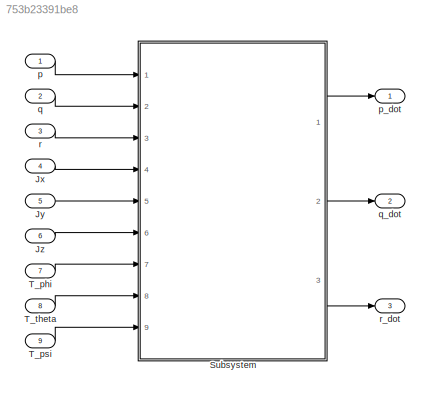
MODEL slx_753b23391be8
KIND model
CONFIG AbsTol = auto
CONFIG EnableMultiTasking = off
CONFIG FixedStep = auto
CONFIG MaxStep = auto
CONFIG MinStep = auto
CONFIG RelTol = 1e-3
CONFIG SampleTimeConstraint = Unconstrained
CONFIG Solver = VariableStepAuto
CONFIG SolverName = VariableStepAuto
CONFIG StartTime = 0.0
CONFIG StopTime = 10.0
BLOCK [Inport] Jx
  IconDisplay = Port number
  Port = 4
BLOCK [Inport] Jy
  IconDisplay = Port number
  Port = 5
BLOCK [Inport] Jz
  IconDisplay = Port number
  Port = 6
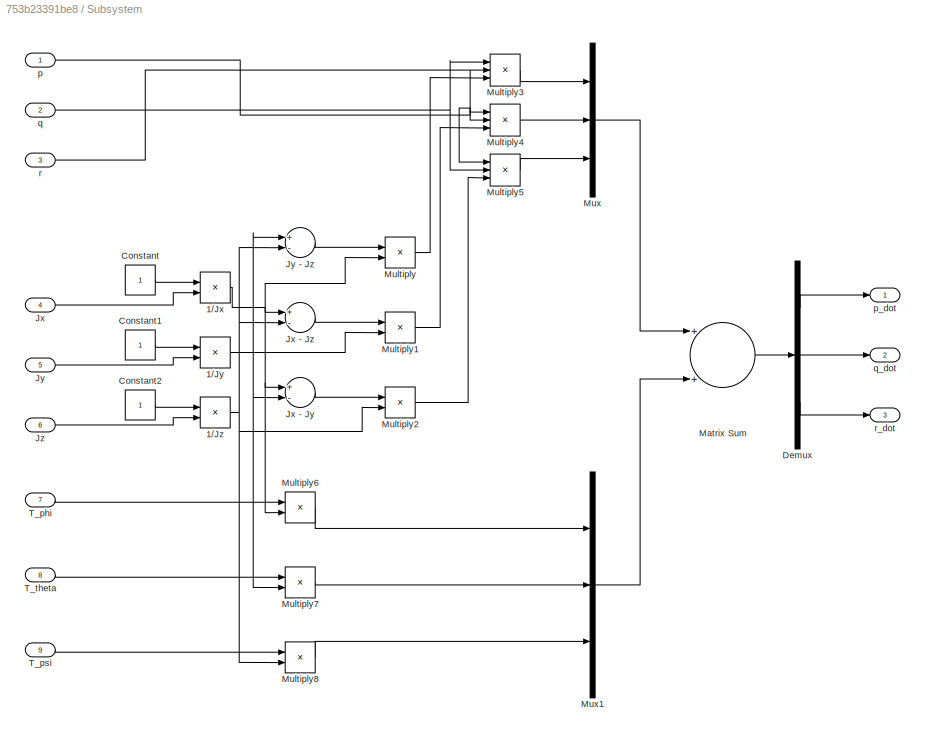
BLOCK [SubSystem] Subsystem
  Ports = [9, 3]
  RequestExecContextInheritance = off
BLOCK [Product] Subsystem/1//Jx
  InputSameDT = off
  Inputs = */
  OutDataTypeStr = Inherit: Inherit via internal rule
  Ports = [2, 1]
  RndMeth = Floor
  SaturateOnIntegerOverflow = off
BLOCK [Product] Subsystem/1//Jy
  InputSameDT = off
  Inputs = */
  OutDataTypeStr = Inherit: Inherit via internal rule
  Ports = [2, 1]
  RndMeth = Floor
  SaturateOnIntegerOverflow = off
BLOCK [Product] Subsystem/1//Jz
  InputSameDT = off
  Inputs = */
  OutDataTypeStr = Inherit: Inherit via internal rule
  Ports = [2, 1]
  RndMeth = Floor
  SaturateOnIntegerOverflow = off
BLOCK [Constant] Subsystem/Constant
BLOCK [Constant] Subsystem/Constant1
BLOCK [Constant] Subsystem/Constant2
BLOCK [Demux] Subsystem/Demux
  DisplayOption = bar
  Outputs = 3
  Ports = [1, 3]
BLOCK [Inport] Subsystem/Jx
  IconDisplay = Port number
  Port = 4
BLOCK [Sum] Subsystem/Jx - Jy
  InputSameDT = off
  Inputs = +-
  OutDataTypeStr = Inherit: Inherit via internal rule
  Ports = [2, 1]
  SaturateOnIntegerOverflow = off
BLOCK [Sum] Subsystem/Jx - Jz
  InputSameDT = off
  Inputs = +-
  OutDataTypeStr = Inherit: Inherit via internal rule
  Ports = [2, 1]
  SaturateOnIntegerOverflow = off
BLOCK [Inport] Subsystem/Jy
  IconDisplay = Port number
  Port = 5
BLOCK [Sum] Subsystem/Jy - Jz
  InputSameDT = off
  Inputs = +-
  OutDataTypeStr = Inherit: Inherit via internal rule
  Ports = [2, 1]
  SaturateOnIntegerOverflow = off
BLOCK [Inport] Subsystem/Jz
  IconDisplay = Port number
  Port = 6
BLOCK [Sum] Subsystem/Matrix Sum
  InputSameDT = off
  OutDataTypeStr = Inherit: Inherit via internal rule
  Ports = [2, 1]
  SaturateOnIntegerOverflow = off
BLOCK [Product] Subsystem/Multiply
  InputSameDT = off
  OutDataTypeStr = Inherit: Inherit via internal rule
  Ports = [2, 1]
  RndMeth = Floor
  SaturateOnIntegerOverflow = off
BLOCK [Product] Subsystem/Multiply1
  InputSameDT = off
  OutDataTypeStr = Inherit: Inherit via internal rule
  Ports = [2, 1]
  RndMeth = Floor
  SaturateOnIntegerOverflow = off
BLOCK [Product] Subsystem/Multiply2
  InputSameDT = off
  OutDataTypeStr = Inherit: Inherit via internal rule
  Ports = [2, 1]
  RndMeth = Floor
  SaturateOnIntegerOverflow = off
BLOCK [Product] Subsystem/Multiply3
  InputSameDT = off
  Inputs = 3
  OutDataTypeStr = Inherit: Inherit via internal rule
  Ports = [3, 1]
  RndMeth = Floor
  SaturateOnIntegerOverflow = off
BLOCK [Product] Subsystem/Multiply4
  InputSameDT = off
  Inputs = 3
  OutDataTypeStr = Inherit: Inherit via internal rule
  Ports = [3, 1]
  RndMeth = Floor
  SaturateOnIntegerOverflow = off
BLOCK [Product] Subsystem/Multiply5
  InputSameDT = off
  Inputs = 3
  OutDataTypeStr = Inherit: Inherit via internal rule
  Ports = [3, 1]
  RndMeth = Floor
  SaturateOnIntegerOverflow = off
BLOCK [Product] Subsystem/Multiply6
  InputSameDT = off
  OutDataTypeStr = Inherit: Inherit via internal rule
  Ports = [2, 1]
  RndMeth = Floor
  SaturateOnIntegerOverflow = off
BLOCK [Product] Subsystem/Multiply7
  InputSameDT = off
  OutDataTypeStr = Inherit: Inherit via internal rule
  Ports = [2, 1]
  RndMeth = Floor
  SaturateOnIntegerOverflow = off
BLOCK [Product] Subsystem/Multiply8
  InputSameDT = off
  OutDataTypeStr = Inherit: Inherit via internal rule
  Ports = [2, 1]
  RndMeth = Floor
  SaturateOnIntegerOverflow = off
BLOCK [Mux] Subsystem/Mux
  DisplayOption = bar
  Inputs = 3
  Ports = [3, 1]
BLOCK [Mux] Subsystem/Mux1
  DisplayOption = bar
  Inputs = 3
  Ports = [3, 1]
BLOCK [Inport] Subsystem/T_phi
  IconDisplay = Port number
  Port = 7
BLOCK [Inport] Subsystem/T_psi
  IconDisplay = Port number
  Port = 9
BLOCK [Inport] Subsystem/T_theta
  IconDisplay = Port number
  Port = 8
BLOCK [Inport] Subsystem/p
  IconDisplay = Port number
BLOCK [Outport] Subsystem/p_dot
  IconDisplay = Port number
BLOCK [Inport] Subsystem/q
  IconDisplay = Port number
  Port = 2
BLOCK [Outport] Subsystem/q_dot
  IconDisplay = Port number
  Port = 2
BLOCK [Inport] Subsystem/r
  IconDisplay = Port number
  Port = 3
BLOCK [Outport] Subsystem/r_dot
  IconDisplay = Port number
  Port = 3
BLOCK [Inport] T_phi
  IconDisplay = Port number
  Port = 7
BLOCK [Inport] T_psi
  IconDisplay = Port number
  Port = 9
BLOCK [Inport] T_theta
  IconDisplay = Port number
  Port = 8
BLOCK [Inport] p
  IconDisplay = Port number
BLOCK [Outport] p_dot
  IconDisplay = Port number
BLOCK [Inport] q
  IconDisplay = Port number
  Port = 2
BLOCK [Outport] q_dot
  IconDisplay = Port number
  Port = 2
BLOCK [Inport] r
  IconDisplay = Port number
  Port = 3
BLOCK [Outport] r_dot
  IconDisplay = Port number
  Port = 3
LINE Jx:1 -> Subsystem:4
LINE Jy:1 -> Subsystem:5
LINE Jz:1 -> Subsystem:6
NET Subsystem/1//Jx:1 -> Subsystem/Jx - Jy:1, Subsystem/Jx - Jz:1, Subsystem/Multiply6:2, Subsystem/Multiply:2
NET Subsystem/1//Jy:1 -> Subsystem/Jx - Jy:2, Subsystem/Jy - Jz:1, Subsystem/Multiply1:2, Subsystem/Multiply7:2
NET Subsystem/1//Jz:1 -> Subsystem/Jx - Jz:2, Subsystem/Jy - Jz:2, Subsystem/Multiply2:2, Subsystem/Multiply8:2
LINE Subsystem/Constant1:1 -> Subsystem/1//Jy:1
LINE Subsystem/Constant2:1 -> Subsystem/1//Jz:1
LINE Subsystem/Constant:1 -> Subsystem/1//Jx:1
LINE Subsystem/Demux:1 -> Subsystem/p_dot:1
LINE Subsystem/Demux:2 -> Subsystem/q_dot:1
LINE Subsystem/Demux:3 -> Subsystem/r_dot:1
LINE Subsystem/Jx - Jy:1 -> Subsystem/Multiply2:1
LINE Subsystem/Jx - Jz:1 -> Subsystem/Multiply1:1
LINE Subsystem/Jx:1 -> Subsystem/1//Jx:2
LINE Subsystem/Jy - Jz:1 -> Subsystem/Multiply:1
LINE Subsystem/Jy:1 -> Subsystem/1//Jy:2
LINE Subsystem/Jz:1 -> Subsystem/1//Jz:2
LINE Subsystem/Matrix Sum:1 -> Subsystem/Demux:1
LINE Subsystem/Multiply1:1 -> Subsystem/Multiply4:3
LINE Subsystem/Multiply2:1 -> Subsystem/Multiply5:3
LINE Subsystem/Multiply3:1 -> Subsystem/Mux:1
LINE Subsystem/Multiply4:1 -> Subsystem/Mux:2
LINE Subsystem/Multiply5:1 -> Subsystem/Mux:3
LINE Subsystem/Multiply6:1 -> Subsystem/Mux1:1
LINE Subsystem/Multiply7:1 -> Subsystem/Mux1:2
LINE Subsystem/Multiply8:1 -> Subsystem/Mux1:3
LINE Subsystem/Multiply:1 -> Subsystem/Multiply3:3
LINE Subsystem/Mux1:1 -> Subsystem/Matrix Sum:2
LINE Subsystem/Mux:1 -> Subsystem/Matrix Sum:1
LINE Subsystem/T_phi:1 -> Subsystem/Multiply6:1
LINE Subsystem/T_psi:1 -> Subsystem/Multiply8:1
LINE Subsystem/T_theta:1 -> Subsystem/Multiply7:1
NET Subsystem/p:1 -> Subsystem/Multiply4:1, Subsystem/Multiply5:1
NET Subsystem/q:1 -> Subsystem/Multiply3:1, Subsystem/Multiply5:2
NET Subsystem/r:1 -> Subsystem/Multiply3:2, Subsystem/Multiply4:2
LINE Subsystem:1 -> p_dot:1
LINE Subsystem:2 -> q_dot:1
LINE Subsystem:3 -> r_dot:1
LINE T_phi:1 -> Subsystem:7
LINE T_psi:1 -> Subsystem:9
LINE T_theta:1 -> Subsystem:8
LINE p:1 -> Subsystem:1
LINE q:1 -> Subsystem:2
LINE r:1 -> Subsystem:3
note: NET lines group one-source signal fan-out (src -> all destinations, sorted); 1:1 wires keep LINE
